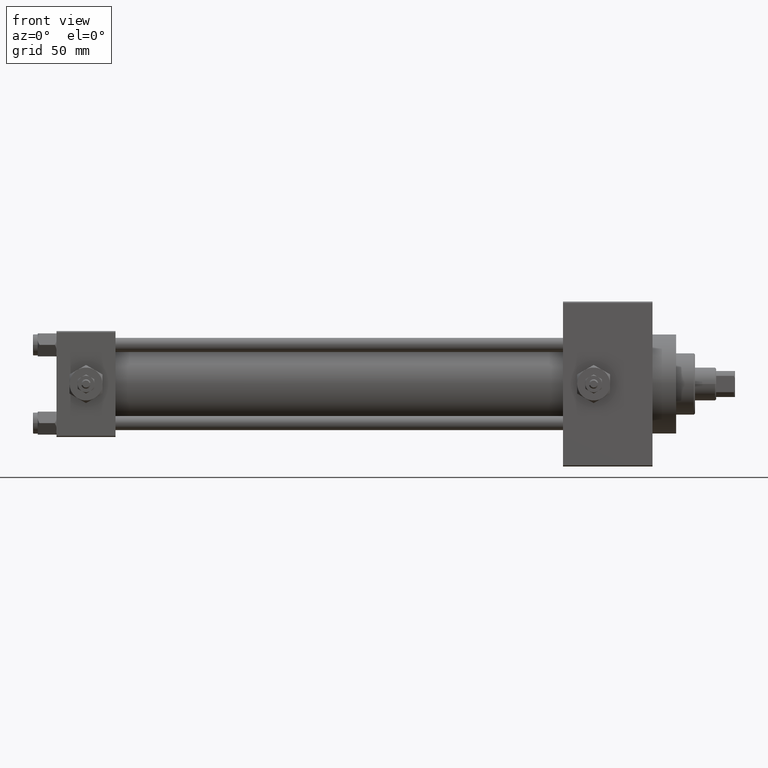
[diagram: clean part render]
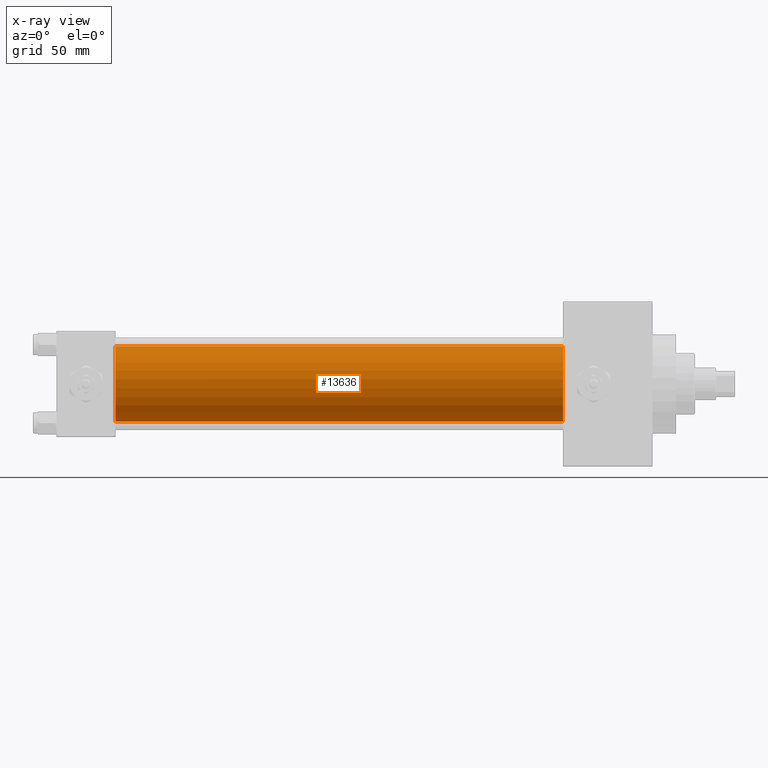
[diagram: x-ray — body ghosted, one internal face saturated and labeled with its STEP entity id]
A machine part, front view, then the same camera in x-ray: the body is ghosted and one INTERNAL B-rep face — a face not visible from any outside direction — is saturated and labeled: STEP entity #13636.
In plain terms, the highlighted cylindrical surface (partial cylindrical patch) has radius 16 mm, axis along (-1, -0, -0).
Its self-contained STEP definition (entity closure, byte-faithful):
#975 = ORIENTED_EDGE ( 'NONE', *, *, #5603, .T. ) ;
#2326 = CARTESIAN_POINT ( 'NONE',  ( 215.0000000000000000, -2.602085213965210642E-15, 16.00000000000000000 ) ) ;
#2768 = EDGE_CURVE ( 'NONE', #7466, #34027, #20693, .T. ) ;
#3357 = DIRECTION ( 'NONE',  ( -1.000000000000000000, -0.000000000000000000, -0.000000000000000000 ) ) ;
#5273 = ORIENTED_EDGE ( 'NONE', *, *, #2768, .F. ) ;
#5467 = DIRECTION ( 'NONE',  ( -1.000000000000000000, -0.000000000000000000, -0.000000000000000000 ) ) ;
#5603 = EDGE_CURVE ( 'NONE', #45567, #35397, #20145, .T. ) ;
#6917 = VECTOR ( 'NONE', #5467, 1000.000000000000000 ) ;
#7466 = VERTEX_POINT ( 'NONE', #2326 ) ;
#8797 = EDGE_CURVE ( 'NONE', #7466, #45567, #38050, .T. ) ;
#9825 = CIRCLE ( 'NONE', #15393, 16.00000000000000000 ) ;
#12159 = DIRECTION ( 'NONE',  ( -1.000000000000000000, -0.000000000000000000, -0.000000000000000000 ) ) ;
#12452 = EDGE_LOOP ( 'NONE', ( #43459, #975, #48408, #5273 ) ) ;
#13211 = CARTESIAN_POINT ( 'NONE',  ( 215.0000000000000000, -6.426503353294456087E-16, -16.00000000000000000 ) ) ;
#13636 = ADVANCED_FACE ( 'NONE', ( #48234 ), #36794, .F. ) ;
#15393 = AXIS2_PLACEMENT_3D ( 'NONE', #44621, #44134, #21451 ) ;
#20145 = LINE ( 'NONE', #39333, #34868 ) ;
#20693 = LINE ( 'NONE', #48077, #6917 ) ;
#21451 = DIRECTION ( 'NONE',  ( 0.000000000000000000, 0.000000000000000000, -1.000000000000000000 ) ) ;
#25329 = CARTESIAN_POINT ( 'NONE',  ( 215.0000000000000000, -2.602085213965210642E-15, 0.000000000000000000 ) ) ;
#26067 = DIRECTION ( 'NONE',  ( 0.000000000000000000, 0.000000000000000000, 1.000000000000000000 ) ) ;
#28164 = EDGE_CURVE ( 'NONE', #34027, #35397, #9825, .T. ) ;
#32398 = DIRECTION ( 'NONE',  ( 0.000000000000000000, 0.000000000000000000, -1.000000000000000000 ) ) ;
#34027 = VERTEX_POINT ( 'NONE', #35791 ) ;
#34868 = VECTOR ( 'NONE', #12159, 1000.000000000000000 ) ;
#35397 = VERTEX_POINT ( 'NONE', #44353 ) ;
#35791 = CARTESIAN_POINT ( 'NONE',  ( 25.00000000000000000, -2.602085213965210642E-15, 16.00000000000000000 ) ) ;
#36794 = CYLINDRICAL_SURFACE ( 'NONE', #42073, 16.00000000000000000 ) ;
#37360 = CARTESIAN_POINT ( 'NONE',  ( 215.0000000000000000, -2.602085213965210642E-15, 0.000000000000000000 ) ) ;
#38050 = CIRCLE ( 'NONE', #39666, 16.00000000000000000 ) ;
#39333 = CARTESIAN_POINT ( 'NONE',  ( 215.0000000000000000, -6.426503353294456087E-16, -16.00000000000000000 ) ) ;
#39666 = AXIS2_PLACEMENT_3D ( 'NONE', #37360, #47574, #32398 ) ;
#42073 = AXIS2_PLACEMENT_3D ( 'NONE', #25329, #3357, #26067 ) ;
#43459 = ORIENTED_EDGE ( 'NONE', *, *, #8797, .T. ) ;
#44134 = DIRECTION ( 'NONE',  ( 1.000000000000000000, 0.000000000000000000, 0.000000000000000000 ) ) ;
#44353 = CARTESIAN_POINT ( 'NONE',  ( 25.00000000000000000, -6.426503353294456087E-16, -16.00000000000000000 ) ) ;
#44621 = CARTESIAN_POINT ( 'NONE',  ( 25.00000000000000000, -2.602085213965210642E-15, 0.000000000000000000 ) ) ;
#45567 = VERTEX_POINT ( 'NONE', #13211 ) ;
#47574 = DIRECTION ( 'NONE',  ( 1.000000000000000000, 0.000000000000000000, 0.000000000000000000 ) ) ;
#48077 = CARTESIAN_POINT ( 'NONE',  ( 215.0000000000000000, -2.602085213965210642E-15, 16.00000000000000000 ) ) ;
#48234 = FACE_OUTER_BOUND ( 'NONE', #12452, .T. ) ;
#48408 = ORIENTED_EDGE ( 'NONE', *, *, #28164, .F. ) ;